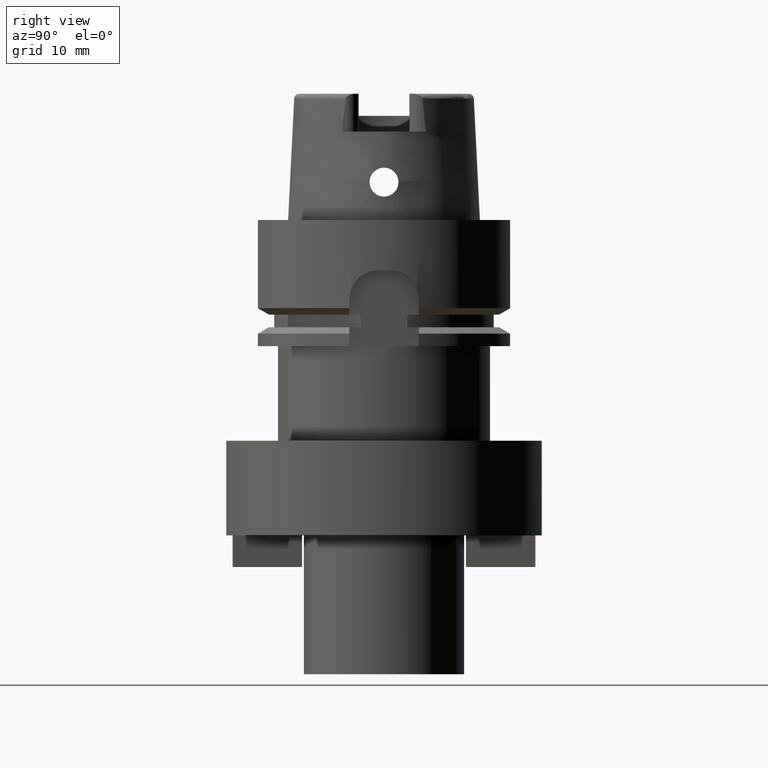
[diagram: clean part render]
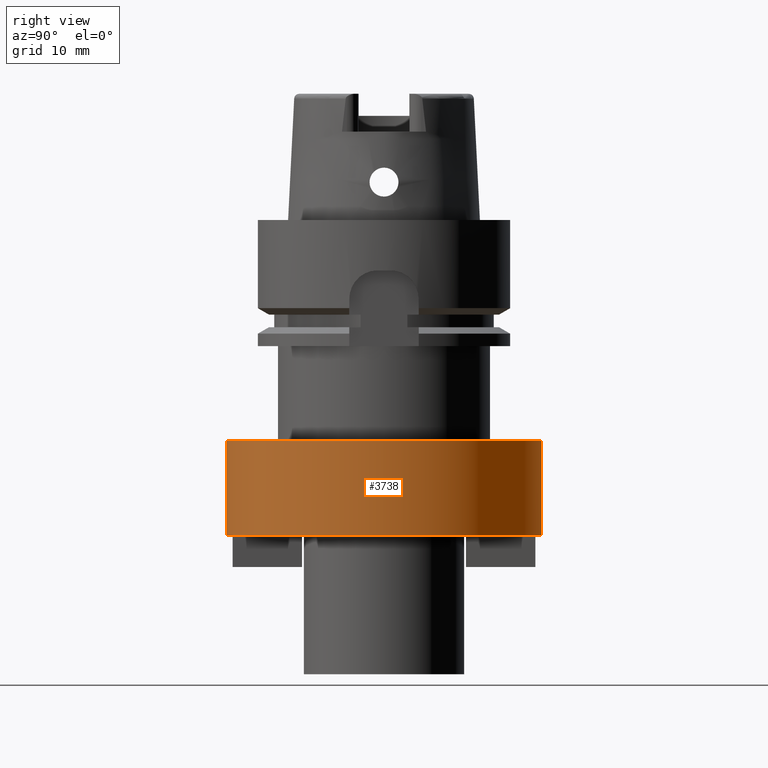
[diagram: same view with one face highlighted and labeled with its STEP entity id]
A machine part, right view. The second image highlights one B-rep face of the part: STEP entity #3738.
In plain terms, the highlighted cylindrical surface (partial cylindrical patch) has radius 25 mm, axis along (0, 0, 1).
Its self-contained STEP definition (entity closure, byte-faithful):
#1063=CARTESIAN_POINT('',(0.E0,0.E0,-5.E1));
#1064=DIRECTION('',(0.E0,0.E0,1.E0));
#1065=DIRECTION('',(0.E0,-1.E0,0.E0));
#1066=AXIS2_PLACEMENT_3D('',#1063,#1064,#1065);
#1123=DIRECTION('',(0.E0,0.E0,-1.E0));
#1124=VECTOR('',#1123,1.5E1);
#1125=CARTESIAN_POINT('',(0.E0,2.5E1,-3.5E1));
#1126=LINE('',#1125,#1124);
#1130=DIRECTION('',(0.E0,0.E0,-1.E0));
#1131=VECTOR('',#1130,1.5E1);
#1132=CARTESIAN_POINT('',(0.E0,-2.5E1,-3.5E1));
#1133=LINE('',#1132,#1131);
#1145=CARTESIAN_POINT('',(0.E0,0.E0,-3.5E1));
#1146=DIRECTION('',(0.E0,0.E0,-1.E0));
#1147=DIRECTION('',(0.E0,1.E0,0.E0));
#1148=AXIS2_PLACEMENT_3D('',#1145,#1146,#1147);
#2679=CARTESIAN_POINT('',(0.E0,-2.5E1,-5.E1));
#2680=CARTESIAN_POINT('',(0.E0,2.5E1,-5.E1));
#2681=VERTEX_POINT('',#2679);
#2682=VERTEX_POINT('',#2680);
#2699=CARTESIAN_POINT('',(0.E0,2.5E1,-3.5E1));
#2700=VERTEX_POINT('',#2699);
#2701=CARTESIAN_POINT('',(0.E0,-2.5E1,-3.5E1));
#2702=VERTEX_POINT('',#2701);
#3724=CARTESIAN_POINT('',(0.E0,0.E0,-7.66E1));
#3725=DIRECTION('',(0.E0,0.E0,1.E0));
#3726=DIRECTION('',(0.E0,1.E0,0.E0));
#3727=AXIS2_PLACEMENT_3D('',#3724,#3725,#3726);
#3728=CYLINDRICAL_SURFACE('',#3727,2.5E1);
#3730=ORIENTED_EDGE('',*,*,#3729,.T.);
#3731=ORIENTED_EDGE('',*,*,#3693,.F.);
#3733=ORIENTED_EDGE('',*,*,#3732,.F.);
#3735=ORIENTED_EDGE('',*,*,#3734,.F.);
#3736=EDGE_LOOP('',(#3730,#3731,#3733,#3735));
#3737=FACE_OUTER_BOUND('',#3736,.F.);
#1067=CIRCLE('',#1066,2.5E1);
#1149=CIRCLE('',#1148,2.5E1);
#3693=EDGE_CURVE('',#2681,#2682,#1067,.T.);
#3729=EDGE_CURVE('',#2700,#2682,#1126,.T.);
#3732=EDGE_CURVE('',#2702,#2681,#1133,.T.);
#3734=EDGE_CURVE('',#2700,#2702,#1149,.T.);
#3738=ADVANCED_FACE('',(#3737),#3728,.T.);